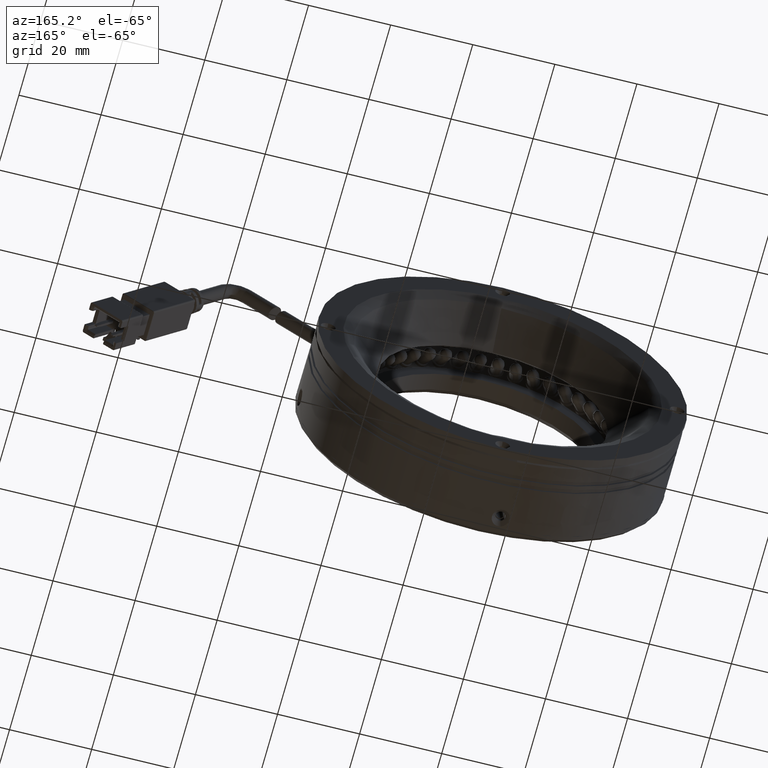
[diagram: clean part render]
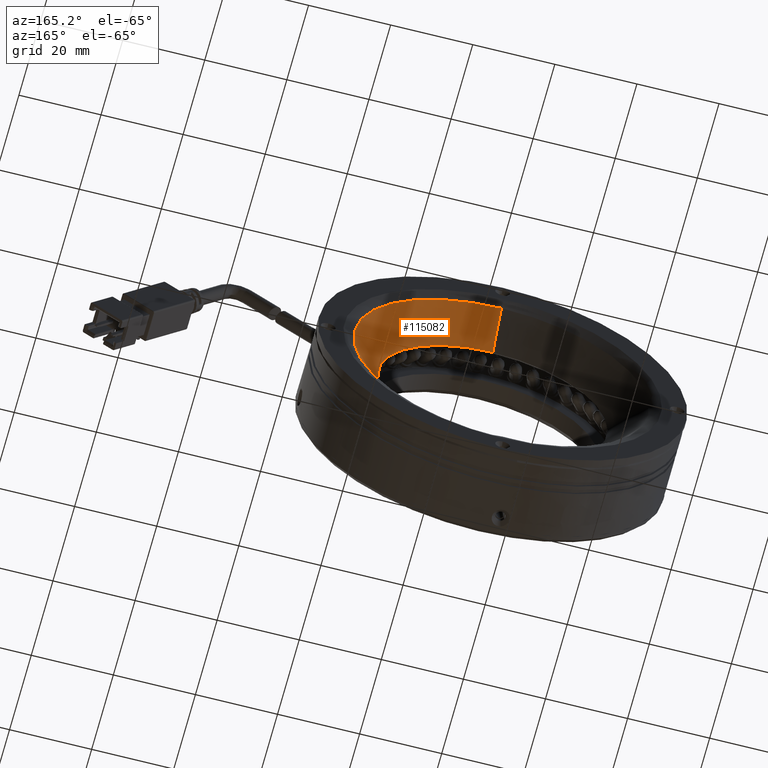
[diagram: same view with one face highlighted and labeled with its STEP entity id]
A machine part, auxiliary view. The second image highlights one B-rep face of the part: STEP entity #115082.
In plain terms, the highlighted conical surface has half-angle 45 deg.
Its self-contained STEP definition (entity closure, byte-faithful):
#5263 = CARTESIAN_POINT ( 'NONE',  ( -53.99004085520083900, 37.80719313704840100, -3.797922368083184200 ) ) ;
#10093 = CARTESIAN_POINT ( 'NONE',  ( -53.99004085520083900, 37.80719313704840100, 32.20207763191682200 ) ) ;
#11601 = ORIENTED_EDGE ( 'NONE', *, *, #33767, .F. ) ;
#15742 = DIRECTION ( 'NONE',  ( 0.0000000000000000000, 0.0000000000000000000, -1.000000000000000000 ) ) ;
#17943 = VERTEX_POINT ( 'NONE', #119492 ) ;
#21417 = EDGE_CURVE ( 'NONE', #45600, #66056, #131720, .T. ) ;
#21652 = CARTESIAN_POINT ( 'NONE',  ( -53.99004085520083900, 29.80719313704832600, 24.20207763191681100 ) ) ;
#30882 = CIRCLE ( 'NONE', #107422, 27.99999999999999300 ) ;
#33767 = EDGE_CURVE ( 'NONE', #17943, #87832, #126068, .T. ) ;
#37671 = DIRECTION ( 'NONE',  ( -0.0000000000000000000, 1.000000000000000000, -0.0000000000000000000 ) ) ;
#39022 = DIRECTION ( 'NONE',  ( 0.0000000000000000000, 0.0000000000000000000, 1.000000000000000000 ) ) ;
#44150 = ORIENTED_EDGE ( 'NONE', *, *, #86486, .T. ) ;
#44550 = CARTESIAN_POINT ( 'NONE',  ( -53.99004085520083200, 37.80719313704840100, -39.79792236808318500 ) ) ;
#45600 = VERTEX_POINT ( 'NONE', #21652 ) ;
#49418 = AXIS2_PLACEMENT_3D ( 'NONE', #5263, #78043, #15742 ) ;
#50752 = EDGE_CURVE ( 'NONE', #87832, #77164, #89578, .T. ) ;
#51900 = DIRECTION ( 'NONE',  ( -0.0000000000000000000, 1.000000000000000000, -0.0000000000000000000 ) ) ;
#55065 = DIRECTION ( 'NONE',  ( 8.659560562354895900E-017, 0.7071067811865505700, -0.7071067811865444600 ) ) ;
#59584 = CARTESIAN_POINT ( 'NONE',  ( -53.99004085520083900, 37.80719313704840100, -3.797922368083184200 ) ) ;
#63911 = CARTESIAN_POINT ( 'NONE',  ( -53.99004085520083200, 37.80719313704840100, -39.79792236808318500 ) ) ;
#65449 = FACE_OUTER_BOUND ( 'NONE', #134989, .T. ) ;
#65801 = ORIENTED_EDGE ( 'NONE', *, *, #50752, .F. ) ;
#66056 = VERTEX_POINT ( 'NONE', #81894 ) ;
#73954 = VECTOR ( 'NONE', #55065, 1000.000000000000000 ) ;
#77164 = VERTEX_POINT ( 'NONE', #123813 ) ;
#78043 = DIRECTION ( 'NONE',  ( 0.0000000000000000000, -1.000000000000000000, 0.0000000000000000000 ) ) ;
#80005 = CONICAL_SURFACE ( 'NONE', #117267, 36.00000000000000700, 0.7853981633974439500 ) ;
#81894 = CARTESIAN_POINT ( 'NONE',  ( -25.99004085520083500, 29.80719313704832600, -3.797922368083184200 ) ) ;
#86486 = EDGE_CURVE ( 'NONE', #45600, #77164, #98250, .T. ) ;
#87832 = VERTEX_POINT ( 'NONE', #63911 ) ;
#89578 = CIRCLE ( 'NONE', #49418, 36.00000000000000000 ) ;
#98250 = LINE ( 'NONE', #10093, #122695 ) ;
#100029 = CARTESIAN_POINT ( 'NONE',  ( -53.99004085520083900, 29.80719313704832600, -3.797922368083184200 ) ) ;
#100941 = EDGE_CURVE ( 'NONE', #66056, #17943, #30882, .T. ) ;
#104329 = DIRECTION ( 'NONE',  ( 0.0000000000000000000, 0.7071067811865505700, 0.7071067811865444600 ) ) ;
#107422 = AXIS2_PLACEMENT_3D ( 'NONE', #114264, #51900, #124707 ) ;
#110509 = DIRECTION ( 'NONE',  ( 0.0000000000000000000, 0.0000000000000000000, 1.000000000000000000 ) ) ;
#114264 = CARTESIAN_POINT ( 'NONE',  ( -53.99004085520083900, 29.80719313704832600, -3.797922368083184200 ) ) ;
#115082 = ADVANCED_FACE ( 'NONE', ( #65449 ), #80005, .F. ) ;
#115135 = ORIENTED_EDGE ( 'NONE', *, *, #21417, .F. ) ;
#117267 = AXIS2_PLACEMENT_3D ( 'NONE', #59584, #131376, #39022 ) ;
#119492 = CARTESIAN_POINT ( 'NONE',  ( -53.99004085520083200, 29.80719313704832600, -31.79792236808318200 ) ) ;
#122695 = VECTOR ( 'NONE', #104329, 1000.000000000000000 ) ;
#123264 = ORIENTED_EDGE ( 'NONE', *, *, #100941, .F. ) ;
#123813 = CARTESIAN_POINT ( 'NONE',  ( -53.99004085520083900, 37.80719313704840100, 32.20207763191682200 ) ) ;
#124707 = DIRECTION ( 'NONE',  ( 0.0000000000000000000, 0.0000000000000000000, 1.000000000000000000 ) ) ;
#126068 = LINE ( 'NONE', #44550, #73954 ) ;
#130310 = AXIS2_PLACEMENT_3D ( 'NONE', #100029, #37671, #110509 ) ;
#131376 = DIRECTION ( 'NONE',  ( 0.0000000000000000000, 1.000000000000000000, 0.0000000000000000000 ) ) ;
#131720 = CIRCLE ( 'NONE', #130310, 27.99999999999999300 ) ;
#134989 = EDGE_LOOP ( 'NONE', ( #11601, #123264, #115135, #44150, #65801 ) ) ;